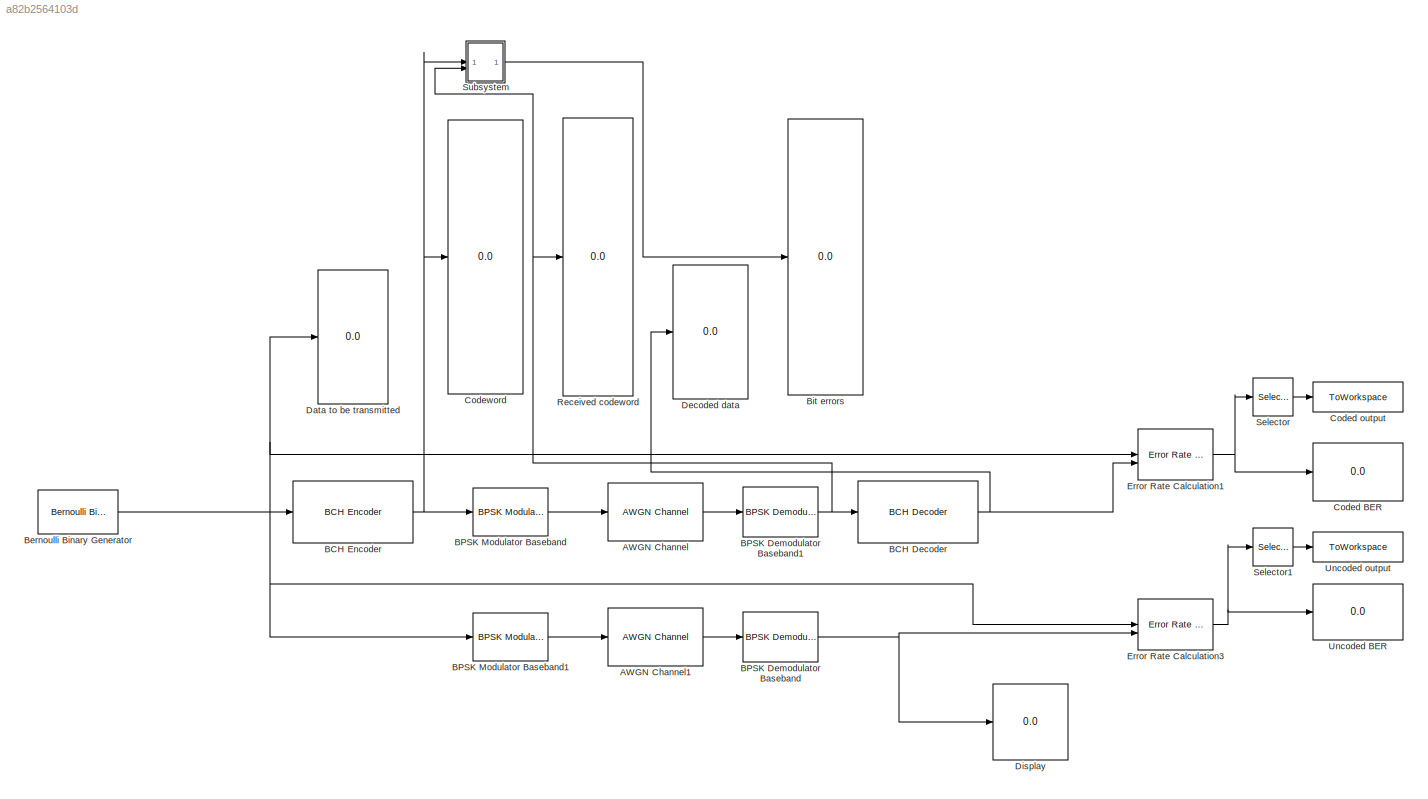
MODEL slx_a82b2564103d
KIND model
CONFIG AbsTol = auto
CONFIG EnableMultiTasking = off
CONFIG FixedStep = auto
CONFIG MaxStep = auto
CONFIG MinStep = auto
CONFIG RelTol = 1e-3
CONFIG SampleTimeConstraint = Unconstrained
CONFIG SolverName = VariableStepAuto
CONFIG StartTime = 0.0
CONFIG StopTime = inf
BLOCK [Reference] AWGN Channel  REF=commchan3/AWGN
Channel
  SourceBlock = commchan3/AWGN\nChannel
  SourceType = AWGN Channel
  UserDataPersistent = on
BLOCK [Reference] AWGN Channel1  REF=commchan3/AWGN
Channel
  SourceBlock = commchan3/AWGN\nChannel
  SourceType = AWGN Channel
  UserDataPersistent = on
BLOCK [Reference] BCH Decoder  REF=commblkcod2/BCH Decoder
  SourceBlock = commblkcod2/BCH Decoder
  SourceType = BCH Decoder
BLOCK [Reference] BCH Encoder  REF=commblkcod2/BCH Encoder
  SourceBlock = commblkcod2/BCH Encoder
  SourceType = BCH Encoder
BLOCK [Reference] BPSK Demodulator Baseband  REF=commdigbbndpm3/BPSK
Demodulator
Baseband
  SourceBlock = commdigbbndpm3/BPSK\nDemodulator\nBaseband
  SourceType = BPSK Demodulator Baseband
BLOCK [Reference] BPSK Demodulator Baseband1  REF=commdigbbndpm3/BPSK
Demodulator
Baseband
  SourceBlock = commdigbbndpm3/BPSK\nDemodulator\nBaseband
  SourceType = BPSK Demodulator Baseband
BLOCK [Reference] BPSK Modulator Baseband  REF=commdigbbndpm3/BPSK
Modulator
Baseband
  SourceBlock = commdigbbndpm3/BPSK\nModulator\nBaseband
  SourceType = BPSK Modulator Baseband
BLOCK [Reference] BPSK Modulator Baseband1  REF=commdigbbndpm3/BPSK
Modulator
Baseband
  SourceBlock = commdigbbndpm3/BPSK\nModulator\nBaseband
  SourceType = BPSK Modulator Baseband
BLOCK [Reference] Bernoulli Binary Generator  REF=commrandsrc3/Bernoulli Binary
Generator
  SourceBlock = commrandsrc3/Bernoulli Binary\nGenerator
  SourceType = Bernoulli Binary Generator
BLOCK [Display] Bit errors
  Decimation = 1
BLOCK [Display] Coded BER
  Decimation = 1
BLOCK [ToWorkspace] Coded output
  FixptAsFi = on
  MaxDataPoints = inf
  SampleTime = -1
  SaveFormat = Timeseries
  VariableName = coded_out
BLOCK [Display] Codeword
  Decimation = 1
BLOCK [Display] Data to be transmitted
  Decimation = 1
BLOCK [Display] Decoded data
  Decimation = 1
BLOCK [Display] Display
  Decimation = 1
BLOCK [Reference] Error Rate Calculation1  REF=commsink2/Error Rate
Calculation
  SourceBlock = commsink2/Error Rate\nCalculation
  SourceType = Error Rate Calculation
BLOCK [Reference] Error Rate Calculation3  REF=commsink2/Error Rate
Calculation
  SourceBlock = commsink2/Error Rate\nCalculation
  SourceType = Error Rate Calculation
BLOCK [Display] Received codeword
  Decimation = 1
BLOCK [Selector] Selector
  IndexOptions = Index vector (dialog)
  Indices = 1
  InputPortWidth = 3
  OutputSizes = 1
BLOCK [Selector] Selector1
  IndexOptions = Index vector (dialog)
  Indices = 1
  InputPortWidth = 3
  OutputSizes = 1
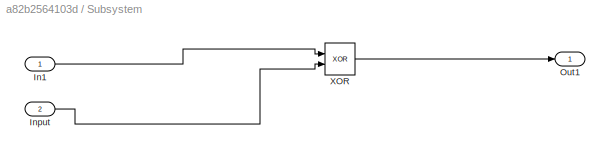
BLOCK [SubSystem] Subsystem
BLOCK [Inport] Subsystem/In1
BLOCK [Inport] Subsystem/Input
  Port = 2
BLOCK [Outport] Subsystem/Out1
BLOCK [Logic] Subsystem/XOR
  AllPortsSameDT = off
  IconShape = distinctive
  Operator = XOR
  OutDataTypeStr = boolean
BLOCK [Display] Uncoded BER
  Decimation = 1
BLOCK [ToWorkspace] Uncoded output
  FixptAsFi = on
  MaxDataPoints = inf
  SampleTime = -1
  SaveFormat = Timeseries
  VariableName = uncoded_out
LINE AWGN Channel1:1 -> BPSK Demodulator Baseband:1
LINE AWGN Channel:1 -> BPSK Demodulator Baseband1:1
NET BCH Decoder:1 -> Decoded data:1, Error Rate Calculation1:2
NET BCH Encoder:1 -> BPSK Modulator Baseband:1, Codeword:1, Subsystem:1
NET BPSK Demodulator Baseband1:1 -> BCH Decoder:1, Received codeword:1, Subsystem:2
NET BPSK Demodulator Baseband:1 -> Display:1, Error Rate Calculation3:2
LINE BPSK Modulator Baseband1:1 -> AWGN Channel1:1
LINE BPSK Modulator Baseband:1 -> AWGN Channel:1
NET Bernoulli Binary Generator:1 -> BCH Encoder:1, BPSK Modulator Baseband1:1, Data to be transmitted:1, Error Rate Calculation1:1, Error Rate Calculation3:1
NET Error Rate Calculation1:1 -> Coded BER:1, Selector:1
NET Error Rate Calculation3:1 -> Selector1:1, Uncoded BER:1
LINE Selector1:1 -> Uncoded output:1
LINE Selector:1 -> Coded output:1
LINE Subsystem/In1:1 -> Subsystem/XOR:1
LINE Subsystem/Input:1 -> Subsystem/XOR:2
LINE Subsystem/XOR:1 -> Subsystem/Out1:1
LINE Subsystem:1 -> Bit errors:1
note: NET lines group one-source signal fan-out (src -> all destinations, sorted); 1:1 wires keep LINE
